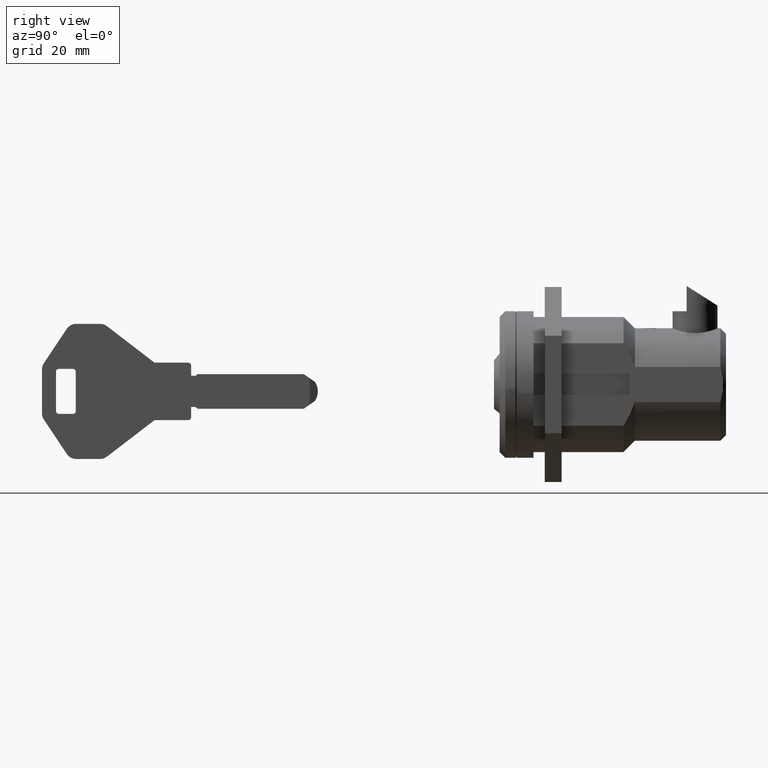
[diagram: clean part render]
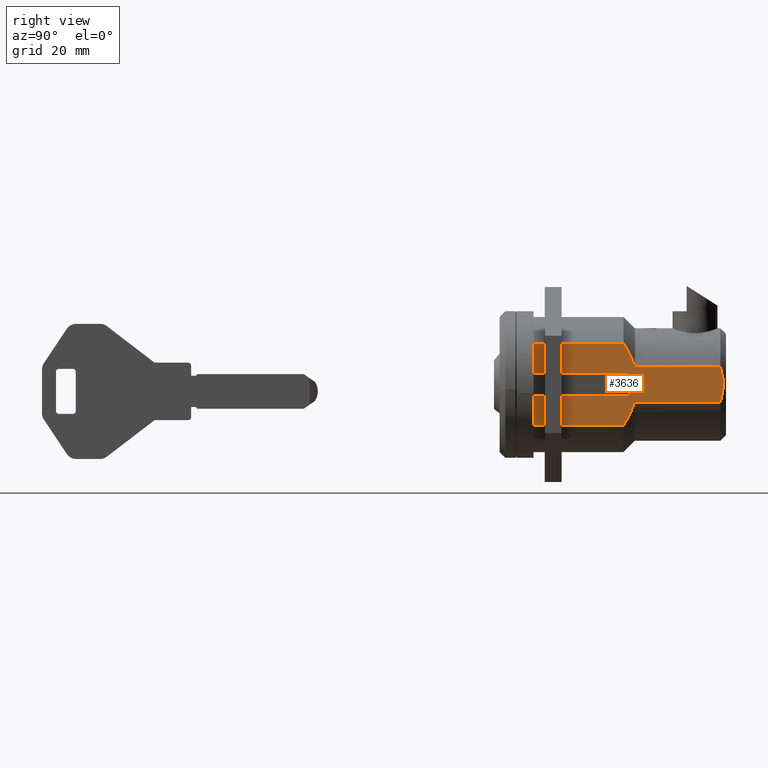
[diagram: same view with one face highlighted and labeled with its STEP entity id]
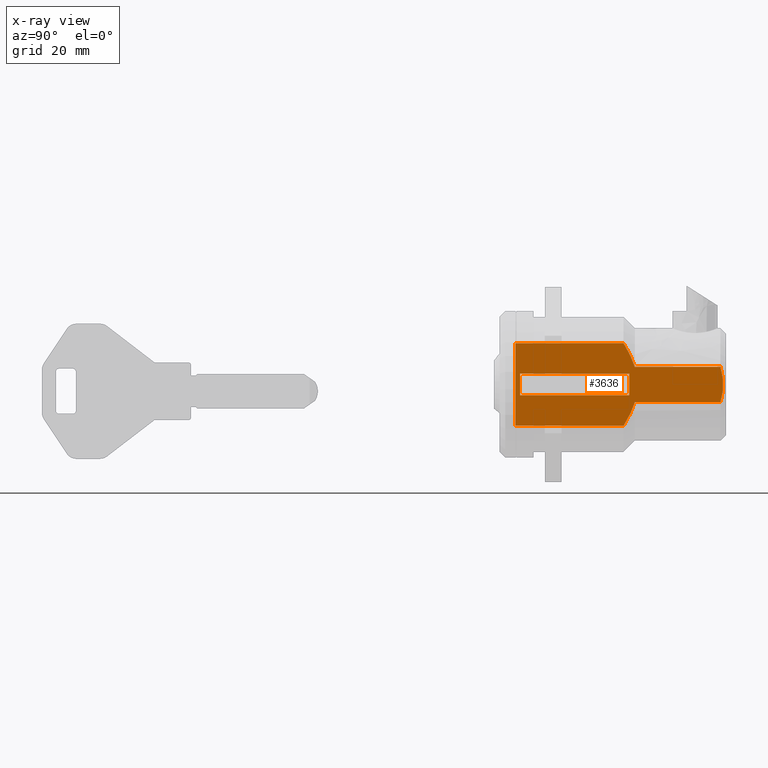
[diagram: x-ray of the same camera — body ghosted, the highlighted face saturated]
A machine part, right view. The second image highlights one B-rep face of the part: STEP entity #3636.
The next image is the same camera in x-ray: the body ghosted, the highlighted face saturated — about 0% of this face is hidden behind the body in this view.
In plain terms, the highlighted face is a freeform B-spline surface patch.
Its self-contained STEP definition (entity closure, byte-faithful):
#2471=CARTESIAN_POINT('',(40.199999999999200,-9.500000000000000,3.122498999208065));
#2472=VERTEX_POINT('',#2471);
#2486=CARTESIAN_POINT('',(40.199999999999200,-9.500000000000000,-3.122498999208290));
#2487=VERTEX_POINT('',#2486);
#2488=CARTESIAN_POINT('',(40.199999999999193,-9.500000000000000,3.122498999208066));
#2489=CARTESIAN_POINT('',(40.356678853704970,-9.500000000000002,2.620725087525323));
#2490=CARTESIAN_POINT('',(40.482202702661297,-9.500000000000002,2.109788098608739));
#2491=CARTESIAN_POINT('',(40.589840762858302,-9.499999999999998,1.456626893737616));
#2492=CARTESIAN_POINT('',(40.608902361715572,-9.500000000000002,1.325269367390162));
#2493=CARTESIAN_POINT('',(40.641831117773499,-9.500000000000000,1.061026564323566));
#2494=CARTESIAN_POINT('',(40.655682827513203,-9.500000000000000,0.928129419458315));
#2495=CARTESIAN_POINT('',(40.688857466678350,-9.500000000000000,0.530629823885387));
#2496=CARTESIAN_POINT('',(40.699946803016033,-9.500000000000000,0.266055296051301));
#2497=CARTESIAN_POINT('',(40.700105820171387,-9.500000000000002,-0.526391610831324));
#2498=CARTESIAN_POINT('',(40.655862299006763,-9.500000000000002,-1.052979438955483));
#2499=CARTESIAN_POINT('',(40.548336720412543,-9.500000000000000,-1.709200585151537));
#2500=CARTESIAN_POINT('',(40.524183209117730,-9.500000000000000,-1.840577742925628));
#2501=CARTESIAN_POINT('',(40.471214315477297,-9.499999999999998,-2.101324999234525));
#2502=CARTESIAN_POINT('',(40.442385996470840,-9.500000000000002,-2.230836936861612));
#2503=CARTESIAN_POINT('',(40.349313588058493,-9.500000000000002,-2.616950969025413));
#2504=CARTESIAN_POINT('',(40.278488772283772,-9.500000000000002,-2.871133755202030));
#2505=CARTESIAN_POINT('',(40.199999999999250,-9.500000000000000,-3.122498999208310));
#2506=B_SPLINE_CURVE_WITH_KNOTS('',3,(#2488,#2489,#2490,#2491,#2492,#2493,#2494,#2495,#2496,#2497,#2498,#2499,#2500,#2501,#2502,#2503,#2504,#2505),.UNSPECIFIED.,.F.,.U.,(4,2,2,2,2,2,2,2,4),(0.0,0.250000000000000,0.312500000000000,0.375000000000000,0.500000000000000,0.749999999999999,0.812499999999999,0.874999999999999,1.0),.UNSPECIFIED.);
#2507=EDGE_CURVE('',#2472,#2487,#2506,.T.);
#2835=CARTESIAN_POINT('',(4.600000000010600,-9.500000000000000,-1.899999999999775));
#2836=VERTEX_POINT('',#2835);
#2842=CARTESIAN_POINT('',(24.0,-9.499999999998071,-1.899999999998810));
#2843=VERTEX_POINT('',#2842);
#2844=CARTESIAN_POINT('',(4.600000000010600,-9.500000000000000,-1.899999999999775));
#2845=CARTESIAN_POINT('',(24.0,-9.499999999998071,-1.899999999998810));
#2846=QUASI_UNIFORM_CURVE('',1,(#2844,#2845),.UNSPECIFIED.,.F.,.U.);
#2847=EDGE_CURVE('',#2836,#2843,#2846,.T.);
#2864=CARTESIAN_POINT('',(4.600000000000000,-9.499999999998071,1.900000000000205));
#2865=VERTEX_POINT('',#2864);
#2871=CARTESIAN_POINT('',(4.600000000000000,-9.499999999998071,1.900000000000205));
#2872=CARTESIAN_POINT('',(4.600000000010600,-9.500000000000000,-1.899999999999775));
#2873=QUASI_UNIFORM_CURVE('',1,(#2871,#2872),.UNSPECIFIED.,.F.,.U.);
#2874=EDGE_CURVE('',#2865,#2836,#2873,.T.);
#2884=CARTESIAN_POINT('',(24.0,-9.499999999998071,1.900000000001170));
#2885=VERTEX_POINT('',#2884);
#2886=CARTESIAN_POINT('',(24.0,-9.499999999998071,-1.899999999998810));
#2887=CARTESIAN_POINT('',(24.0,-9.499999999998071,1.900000000001170));
#2888=QUASI_UNIFORM_CURVE('',1,(#2886,#2887),.UNSPECIFIED.,.F.,.U.);
#2889=EDGE_CURVE('',#2843,#2885,#2888,.T.);
#3489=CARTESIAN_POINT('',(3.800000000000000,-9.500000000000000,-7.331439149303010));
#3490=VERTEX_POINT('',#3489);
#3491=CARTESIAN_POINT('',(3.800000000000000,-9.500000000000000,7.331439149312020));
#3492=VERTEX_POINT('',#3491);
#3493=CARTESIAN_POINT('',(3.800000000000000,-9.500000000000000,-7.331439149303010));
#3494=CARTESIAN_POINT('',(3.800000000000000,-9.500000000000000,7.331439149312020));
#3495=QUASI_UNIFORM_CURVE('',1,(#3493,#3494),.UNSPECIFIED.,.F.,.U.);
#3496=EDGE_CURVE('',#3490,#3492,#3495,.T.);
#3528=CARTESIAN_POINT('',(3.999999999990680,-9.500000000000000,-7.331439149303010));
#3529=VERTEX_POINT('',#3528);
#3530=CARTESIAN_POINT('',(3.999999999990680,-9.500000000000000,-7.331439149303010));
#3531=CARTESIAN_POINT('',(3.800000000000000,-9.500000000000000,-7.331439149303010));
#3532=QUASI_UNIFORM_CURVE('',1,(#3530,#3531),.UNSPECIFIED.,.F.,.U.);
#3533=EDGE_CURVE('',#3529,#3490,#3532,.T.);
#3536=CARTESIAN_POINT('',(4.0,-9.499999999998151,7.331439149310570));
#3537=VERTEX_POINT('',#3536);
#3538=CARTESIAN_POINT('',(4.0,-9.499999999998151,7.331439149310570));
#3539=CARTESIAN_POINT('',(3.800000000000000,-9.500000000000000,7.331439149312020));
#3540=QUASI_UNIFORM_CURVE('',1,(#3538,#3539),.UNSPECIFIED.,.F.,.U.);
#3541=EDGE_CURVE('',#3537,#3492,#3540,.T.);
#3559=CARTESIAN_POINT('',(1.956845071579902,-9.500000000000000,8.063849754263726));
#3560=CARTESIAN_POINT('',(1.956845071579902,-9.500000000000000,-8.063850278640107));
#3561=CARTESIAN_POINT('',(42.543155916943142,-9.500000000000000,8.063849754263726));
#3562=CARTESIAN_POINT('',(42.543155916943142,-9.500000000000000,-8.063850278640107));
#3563=B_SPLINE_SURFACE_WITH_KNOTS('',1,1,((#3559,#3561),(#3560,#3562)),.UNSPECIFIED.,.F.,.F.,.U.,(2,2),(2,2),(0.0,16.127700032903832),(0.0,40.586310845363244),.UNSPECIFIED.);
#3564=CARTESIAN_POINT('',(22.999999999996149,-9.500000000000000,7.331439149312020));
#3565=VERTEX_POINT('',#3564);
#3566=CARTESIAN_POINT('',(22.999999999996149,-9.500000000000000,7.331439149312020));
#3567=CARTESIAN_POINT('',(4.0,-9.499999999998151,7.331439149310570));
#3568=QUASI_UNIFORM_CURVE('',1,(#3566,#3567),.UNSPECIFIED.,.F.,.U.);
#3569=EDGE_CURVE('',#3565,#3537,#3568,.T.);
#3570=ORIENTED_EDGE('',*,*,#3569,.T.);
#3571=ORIENTED_EDGE('',*,*,#3541,.T.);
#3572=ORIENTED_EDGE('',*,*,#3496,.F.);
#3573=ORIENTED_EDGE('',*,*,#3533,.F.);
#3574=CARTESIAN_POINT('',(22.999999999996149,-9.500000000000000,-7.331439149303010));
#3575=VERTEX_POINT('',#3574);
#3576=CARTESIAN_POINT('',(22.999999999996149,-9.500000000000000,-7.331439149303010));
#3577=CARTESIAN_POINT('',(3.999999999990680,-9.500000000000000,-7.331439149303010));
#3578=QUASI_UNIFORM_CURVE('',1,(#3576,#3577),.UNSPECIFIED.,.F.,.U.);
#3579=EDGE_CURVE('',#3575,#3529,#3578,.T.);
#3580=ORIENTED_EDGE('',*,*,#3579,.F.);
#3581=CARTESIAN_POINT('',(24.999999999994600,-9.500000000000000,-3.122498999206030));
#3582=VERTEX_POINT('',#3581);
#3583=CARTESIAN_POINT('',(24.999999999994600,-9.500000000000000,-3.122498999206030));
#3584=CARTESIAN_POINT('',(24.925802315456480,-9.500000000000000,-3.360113017408360));
#3585=CARTESIAN_POINT('',(24.844484473515010,-9.500000000000000,-3.596026189899488));
#3586=CARTESIAN_POINT('',(24.641703428164838,-9.500000000000002,-4.138299967345887));
#3587=CARTESIAN_POINT('',(24.515241362049061,-9.500000000000000,-4.444313622897844));
#3588=CARTESIAN_POINT('',(24.247143629279950,-9.500000000000002,-5.044376024315999));
#3589=CARTESIAN_POINT('',(24.105234387028020,-9.500000000000000,-5.339316097446390));
#3590=CARTESIAN_POINT('',(23.660425816012840,-9.500000000000004,-6.211777745940593));
#3591=CARTESIAN_POINT('',(23.338677845099319,-9.499999999999998,-6.777091146594798));
#3592=CARTESIAN_POINT('',(22.999999999996149,-9.500000000000000,-7.331439149303010));
#3593=B_SPLINE_CURVE_WITH_KNOTS('',3,(#3583,#3584,#3585,#3586,#3587,#3588,#3589,#3590,#3591,#3592),.UNSPECIFIED.,.F.,.U.,(4,2,2,2,4),(0.702415608199652,0.750000000000000,0.812500000000000,0.875000000000000,1.0),.UNSPECIFIED.);
#3594=EDGE_CURVE('',#3582,#3575,#3593,.T.);
#3595=ORIENTED_EDGE('',*,*,#3594,.F.);
#3596=CARTESIAN_POINT('',(40.199999999999200,-9.500000000000000,-3.122498999208290));
#3597=CARTESIAN_POINT('',(24.999999999994600,-9.500000000000000,-3.122498999206030));
#3598=QUASI_UNIFORM_CURVE('',1,(#3596,#3597),.UNSPECIFIED.,.F.,.U.);
#3599=EDGE_CURVE('',#2487,#3582,#3598,.T.);
#3600=ORIENTED_EDGE('',*,*,#3599,.F.);
#3601=ORIENTED_EDGE('',*,*,#2507,.F.);
#3602=CARTESIAN_POINT('',(24.999999999994600,-9.500000000000000,3.122498999205805));
#3603=VERTEX_POINT('',#3602);
#3604=CARTESIAN_POINT('',(24.999999999994600,-9.500000000000000,3.122498999205805));
#3605=CARTESIAN_POINT('',(40.199999999999200,-9.500000000000000,3.122498999208065));
#3606=QUASI_UNIFORM_CURVE('',1,(#3604,#3605),.UNSPECIFIED.,.F.,.U.);
#3607=EDGE_CURVE('',#3603,#2472,#3606,.T.);
#3608=ORIENTED_EDGE('',*,*,#3607,.F.);
#3609=CARTESIAN_POINT('',(22.999999999996149,-9.500000000000000,7.331439149312020));
#3610=CARTESIAN_POINT('',(23.338770416337379,-9.500000000000000,6.776944334127778));
#3611=CARTESIAN_POINT('',(23.659950687451119,-9.500000000000000,6.212474141386246));
#3612=CARTESIAN_POINT('',(24.103011907613141,-9.500000000000004,5.343816858963823));
#3613=CARTESIAN_POINT('',(24.244192524733279,-9.500000000000000,5.050574617847677));
#3614=CARTESIAN_POINT('',(24.510639027510301,-9.500000000000002,4.455064885794208));
#3615=CARTESIAN_POINT('',(24.635910985290831,-9.500000000000002,4.152800838360358));
#3616=CARTESIAN_POINT('',(24.809136208422810,-9.499999999999996,3.691078195187522));
#3617=CARTESIAN_POINT('',(24.864493921573171,-9.500000000000002,3.535569304270394));
#3618=CARTESIAN_POINT('',(24.945572839313911,-9.500000000000000,3.293626041997085));
#3619=CARTESIAN_POINT('',(24.973260348936499,-9.500000000000002,3.208134405825412));
#3620=CARTESIAN_POINT('',(24.999999999994600,-9.500000000000000,3.122498999205805));
#3621=B_SPLINE_CURVE_WITH_KNOTS('',3,(#3609,#3610,#3611,#3612,#3613,#3614,#3615,#3616,#3617,#3618,#3619,#3620),.UNSPECIFIED.,.F.,.U.,(4,2,2,2,2,4),(0.0,0.124999999999999,0.187499999999999,0.249999999999999,0.281249999999999,0.298283462029333),.UNSPECIFIED.);
#3622=EDGE_CURVE('',#3565,#3603,#3621,.T.);
#3623=ORIENTED_EDGE('',*,*,#3622,.F.);
#3624=EDGE_LOOP('',(#3570,#3571,#3572,#3573,#3580,#3595,#3600,#3601,#3608,#3623));
#3625=FACE_OUTER_BOUND('',#3624,.T.);
#3626=CARTESIAN_POINT('',(24.0,-9.499999999998071,1.900000000001170));
#3627=CARTESIAN_POINT('',(4.600000000000000,-9.499999999998071,1.900000000000205));
#3628=QUASI_UNIFORM_CURVE('',1,(#3626,#3627),.UNSPECIFIED.,.F.,.U.);
#3629=EDGE_CURVE('',#2885,#2865,#3628,.T.);
#3630=ORIENTED_EDGE('',*,*,#3629,.F.);
#3631=ORIENTED_EDGE('',*,*,#2889,.F.);
#3632=ORIENTED_EDGE('',*,*,#2847,.F.);
#3633=ORIENTED_EDGE('',*,*,#2874,.F.);
#3634=EDGE_LOOP('',(#3630,#3631,#3632,#3633));
#3635=FACE_BOUND('',#3634,.T.);
#3636=ADVANCED_FACE('',(#3625,#3635),#3563,.T.);